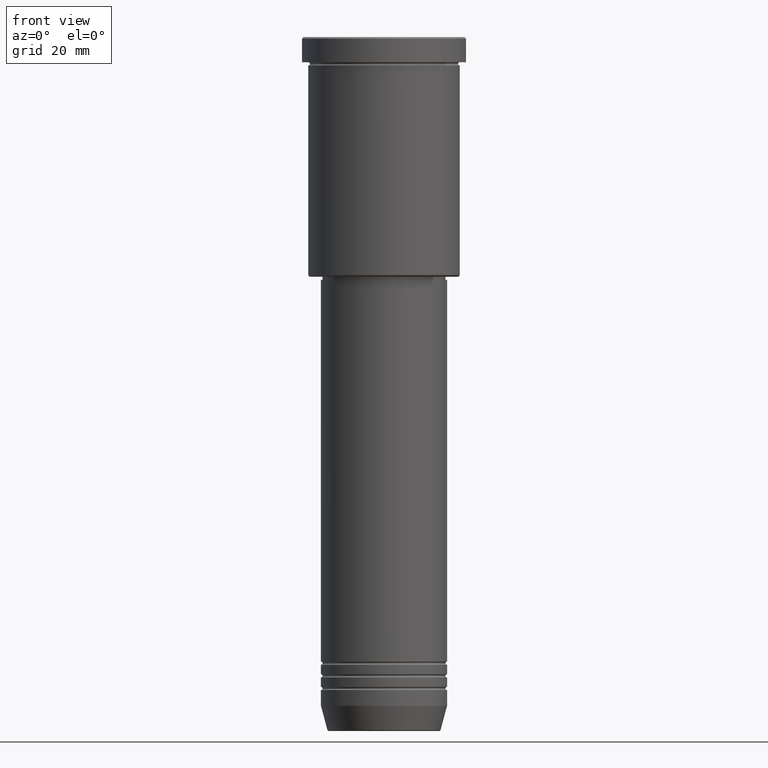
[diagram: clean part render]
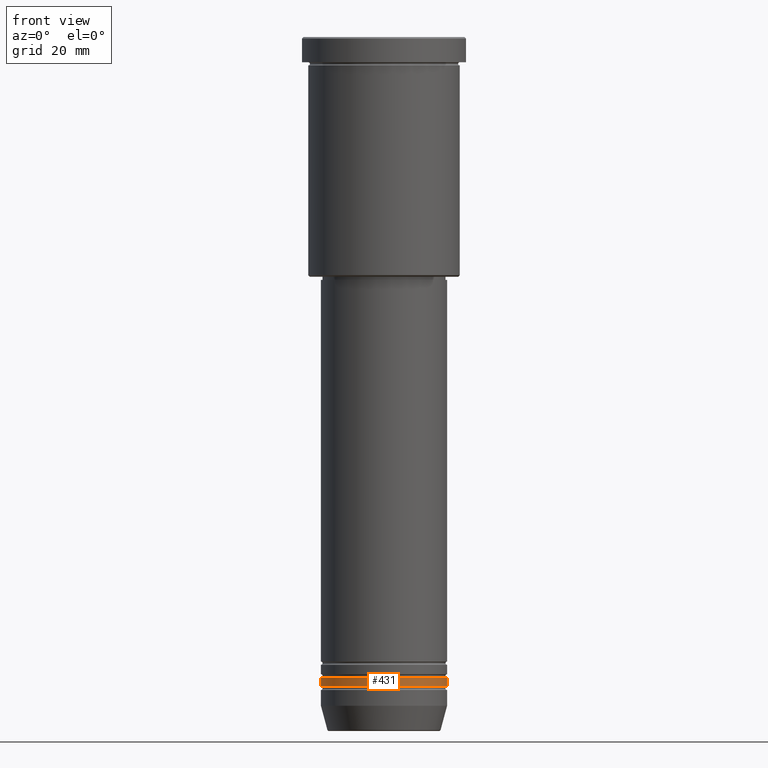
[diagram: same view with one face highlighted and labeled with its STEP entity id]
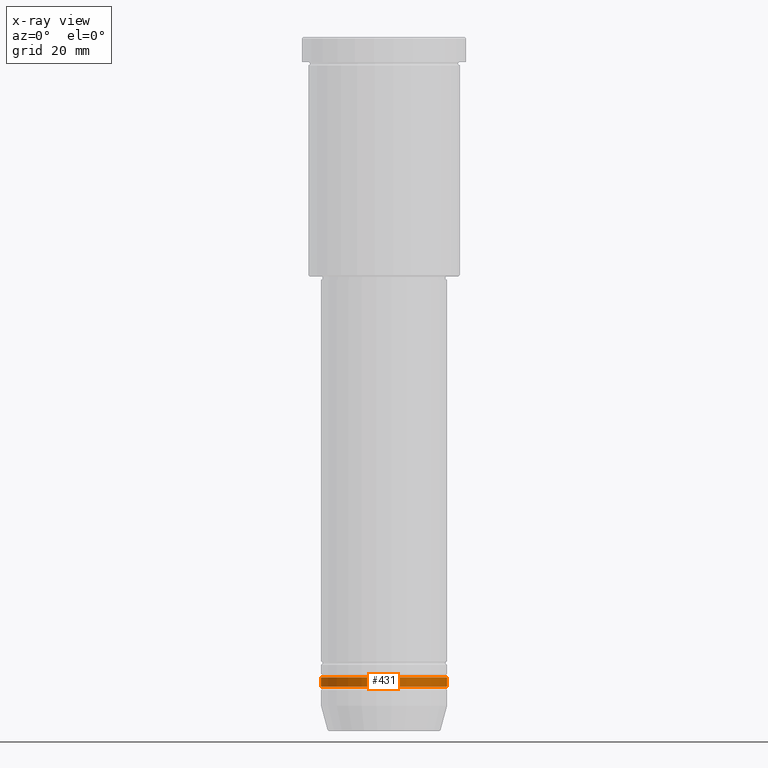
[diagram: x-ray of the same camera — body ghosted, the highlighted face saturated]
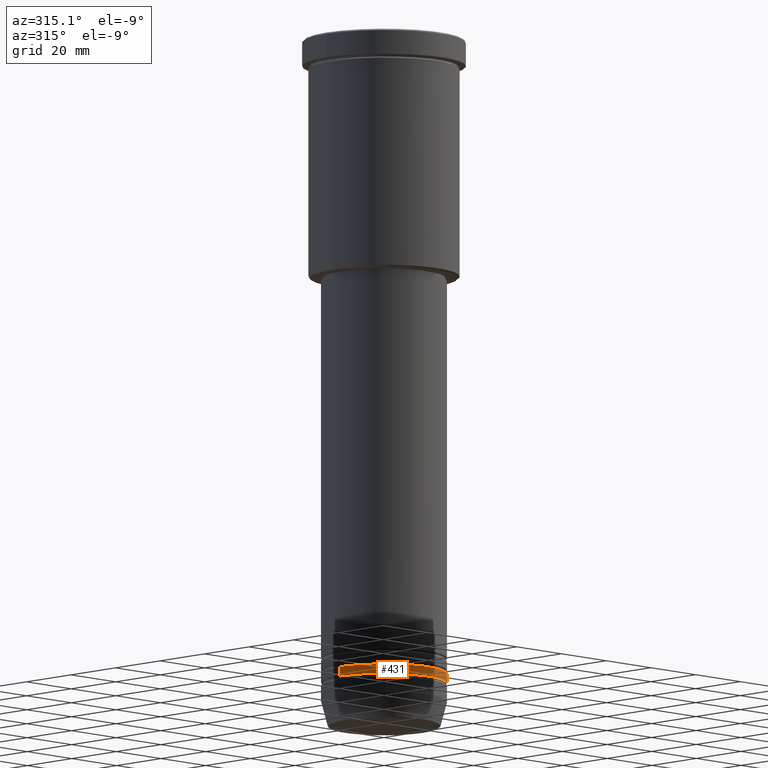
[diagram: same view with one face highlighted and labeled with its STEP entity id]
A machine part, front view. The second image highlights one B-rep face of the part: STEP entity #431.
The next image is the same camera in x-ray: the body ghosted, the highlighted face saturated — about 0% of this face is hidden behind the body in this view.
A second angle (auxiliary view) of the same face is appended — the face is thin or edge-on in the first view.
In plain terms, the highlighted cylindrical surface (partial cylindrical patch) has radius 20 mm, axis along (-0, -0, 1).
Its self-contained STEP definition (entity closure, byte-faithful):
#30 = CIRCLE ( 'NONE', #180, 20.00000000000000000 ) ;
#80 = DIRECTION ( 'NONE',  ( 1.000000000000000000, 0.000000000000000000, 0.000000000000000000 ) ) ;
#118 = FACE_OUTER_BOUND ( 'NONE', #424, .T. ) ;
#148 = ORIENTED_EDGE ( 'NONE', *, *, #272, .F. ) ;
#149 = CARTESIAN_POINT ( 'NONE',  ( -20.00000000000000000, 2.449293598294706513E-15, -203.0000000000000000 ) ) ;
#165 = LINE ( 'NONE', #240, #1178 ) ;
#167 = CIRCLE ( 'NONE', #1050, 20.00000000000000355 ) ;
#180 = AXIS2_PLACEMENT_3D ( 'NONE', #262, #415, #326 ) ;
#227 = CARTESIAN_POINT ( 'NONE',  ( 0.000000000000000000, 0.000000000000000000, 0.000000000000000000 ) ) ;
#240 = CARTESIAN_POINT ( 'NONE',  ( -20.00000000000000355, 2.449293598294706907E-15, 0.000000000000000000 ) ) ;
#262 = CARTESIAN_POINT ( 'NONE',  ( 0.000000000000000000, 0.000000000000000000, -203.0000000000000000 ) ) ;
#271 = ORIENTED_EDGE ( 'NONE', *, *, #766, .T. ) ;
#272 = EDGE_CURVE ( 'NONE', #776, #1060, #165, .T. ) ;
#276 = EDGE_CURVE ( 'NONE', #1060, #830, #30, .T. ) ;
#326 = DIRECTION ( 'NONE',  ( 1.000000000000000000, 0.000000000000000000, 0.000000000000000000 ) ) ;
#342 = CARTESIAN_POINT ( 'NONE',  ( 0.000000000000000000, 0.000000000000000000, -205.9999999999999716 ) ) ;
#400 = DIRECTION ( 'NONE',  ( 1.000000000000000000, 0.000000000000000000, 0.000000000000000000 ) ) ;
#415 = DIRECTION ( 'NONE',  ( -0.000000000000000000, -0.000000000000000000, 1.000000000000000000 ) ) ;
#424 = EDGE_LOOP ( 'NONE', ( #148, #1012, #271, #991 ) ) ;
#431 = ADVANCED_FACE ( 'NONE', ( #118 ), #490, .T. ) ;
#467 = AXIS2_PLACEMENT_3D ( 'NONE', #227, #955, #400 ) ;
#490 = CYLINDRICAL_SURFACE ( 'NONE', #467, 20.00000000000000355 ) ;
#578 = CARTESIAN_POINT ( 'NONE',  ( -20.00000000000000355, 2.449293598294706907E-15, -205.9999999999999716 ) ) ;
#673 = VERTEX_POINT ( 'NONE', #921 ) ;
#758 = CARTESIAN_POINT ( 'NONE',  ( 20.00000000000000000, 0.000000000000000000, -203.0000000000000000 ) ) ;
#766 = EDGE_CURVE ( 'NONE', #673, #830, #1046, .T. ) ;
#776 = VERTEX_POINT ( 'NONE', #578 ) ;
#786 = DIRECTION ( 'NONE',  ( -0.000000000000000000, -0.000000000000000000, 1.000000000000000000 ) ) ;
#830 = VERTEX_POINT ( 'NONE', #758 ) ;
#858 = VECTOR ( 'NONE', #876, 1000.000000000000000 ) ;
#876 = DIRECTION ( 'NONE',  ( -0.000000000000000000, -0.000000000000000000, 1.000000000000000000 ) ) ;
#921 = CARTESIAN_POINT ( 'NONE',  ( 20.00000000000000355, 0.000000000000000000, -205.9999999999999716 ) ) ;
#955 = DIRECTION ( 'NONE',  ( -0.000000000000000000, -0.000000000000000000, 1.000000000000000000 ) ) ;
#991 = ORIENTED_EDGE ( 'NONE', *, *, #276, .F. ) ;
#1012 = ORIENTED_EDGE ( 'NONE', *, *, #1137, .T. ) ;
#1041 = CARTESIAN_POINT ( 'NONE',  ( 20.00000000000000355, 0.000000000000000000, 0.000000000000000000 ) ) ;
#1046 = LINE ( 'NONE', #1041, #858 ) ;
#1050 = AXIS2_PLACEMENT_3D ( 'NONE', #342, #1081, #80 ) ;
#1060 = VERTEX_POINT ( 'NONE', #149 ) ;
#1081 = DIRECTION ( 'NONE',  ( -0.000000000000000000, -0.000000000000000000, 1.000000000000000000 ) ) ;
#1137 = EDGE_CURVE ( 'NONE', #776, #673, #167, .T. ) ;
#1178 = VECTOR ( 'NONE', #786, 1000.000000000000000 ) ;